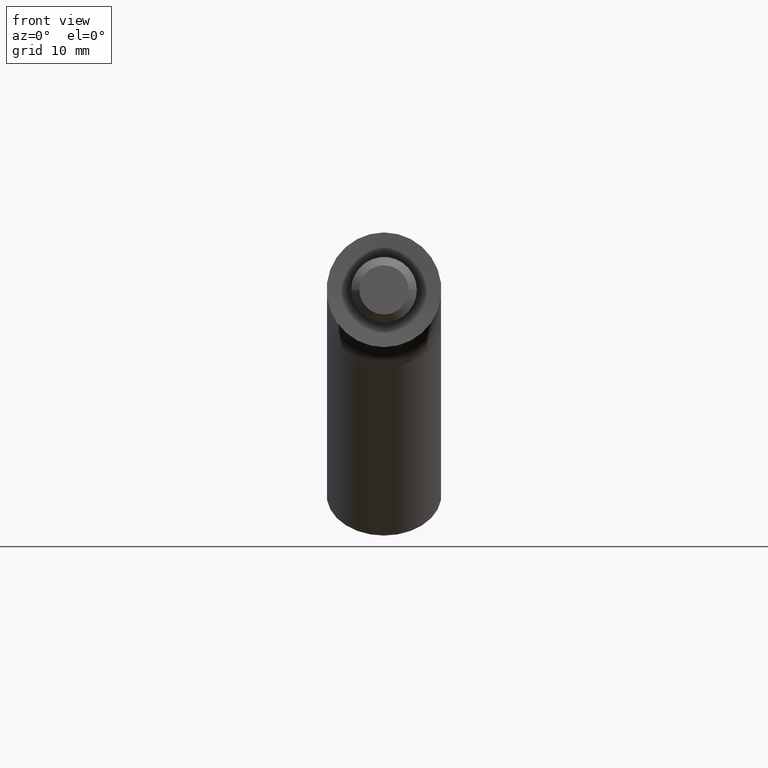
[diagram: clean part render]
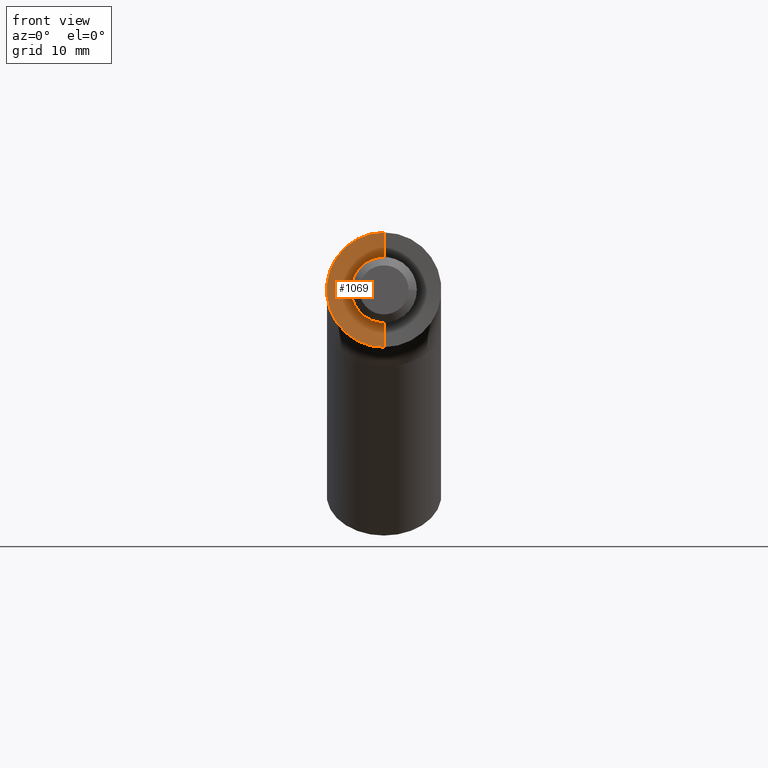
[diagram: same view with one face highlighted and labeled with its STEP entity id]
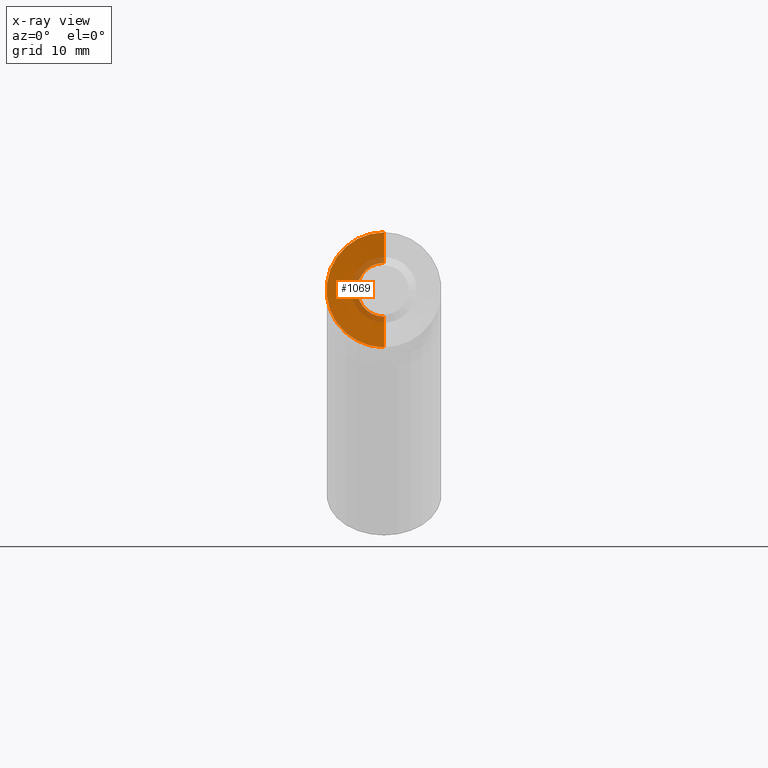
[diagram: x-ray of the same camera — body ghosted, the highlighted face saturated]
A machine part, front view. The second image highlights one B-rep face of the part: STEP entity #1069.
The next image is the same camera in x-ray: the body ghosted, the highlighted face saturated — about 14% of this face is hidden behind the body in this view.
In plain terms, the highlighted conical surface has half-angle 85 deg.
Its self-contained STEP definition (entity closure, byte-faithful):
#5 = CONICAL_SURFACE ( 'NONE', #11667, 7.000000000000000000, 1.483529864195187100 ) ;
#1046 = DIRECTION ( 'NONE',  ( 0.0000000000000000000, 0.0000000000000000000, -1.000000000000000000 ) ) ;
#1069 = ADVANCED_FACE ( 'NONE', ( #4405 ), #5, .F. ) ;
#1089 = ORIENTED_EDGE ( 'NONE', *, *, #5767, .T. ) ;
#1750 = VERTEX_POINT ( 'NONE', #13063 ) ;
#1770 = CARTESIAN_POINT ( 'NONE',  ( 0.0000000000000000000, 0.3261762033592852100, 0.0000000000000000000 ) ) ;
#2207 = EDGE_CURVE ( 'NONE', #9186, #1750, #2764, .T. ) ;
#2219 = DIRECTION ( 'NONE',  ( 0.0000000000000000000, -0.08715574274765128200, -0.9961946980917461000 ) ) ;
#2556 = CARTESIAN_POINT ( 'NONE',  ( 0.0000000000000000000, 0.0000000000000000000, 0.0000000000000000000 ) ) ;
#2764 = CIRCLE ( 'NONE', #3863, 3.271788935686912800 ) ;
#2824 = ORIENTED_EDGE ( 'NONE', *, *, #6909, .F. ) ;
#2909 = EDGE_LOOP ( 'NONE', ( #9056, #1089, #10374, #2824 ) ) ;
#3094 = CARTESIAN_POINT ( 'NONE',  ( 0.0000000000000000000, 0.0000000000000000000, -7.000000000000000000 ) ) ;
#3863 = AXIS2_PLACEMENT_3D ( 'NONE', #1770, #11955, #5951 ) ;
#4405 = FACE_OUTER_BOUND ( 'NONE', #2909, .T. ) ;
#5291 = CIRCLE ( 'NONE', #11819, 7.000000000000000000 ) ;
#5358 = DIRECTION ( 'NONE',  ( -0.0000000000000000000, -1.000000000000000000, -0.0000000000000000000 ) ) ;
#5674 = DIRECTION ( 'NONE',  ( 0.0000000000000000000, 0.0000000000000000000, -1.000000000000000000 ) ) ;
#5767 = EDGE_CURVE ( 'NONE', #1750, #13227, #8176, .T. ) ;
#5951 = DIRECTION ( 'NONE',  ( 0.0000000000000000000, 0.0000000000000000000, -1.000000000000000000 ) ) ;
#6797 = CARTESIAN_POINT ( 'NONE',  ( 0.0000000000000000000, 0.0000000000000000000, -7.000000000000000000 ) ) ;
#6909 = EDGE_CURVE ( 'NONE', #9186, #10663, #9742, .T. ) ;
#8176 = LINE ( 'NONE', #11235, #8662 ) ;
#8662 = VECTOR ( 'NONE', #11094, 1000.000000000000000 ) ;
#8853 = DIRECTION ( 'NONE',  ( -0.0000000000000000000, -1.000000000000000000, -0.0000000000000000000 ) ) ;
#9056 = ORIENTED_EDGE ( 'NONE', *, *, #2207, .T. ) ;
#9186 = VERTEX_POINT ( 'NONE', #13058 ) ;
#9742 = LINE ( 'NONE', #3094, #12006 ) ;
#10374 = ORIENTED_EDGE ( 'NONE', *, *, #11493, .T. ) ;
#10663 = VERTEX_POINT ( 'NONE', #6797 ) ;
#11094 = DIRECTION ( 'NONE',  ( 1.219986648345620700E-016, -0.08715574274765128200, 0.9961946980917461000 ) ) ;
#11235 = CARTESIAN_POINT ( 'NONE',  ( 8.572527594031473200E-016, 0.0000000000000000000, 7.000000000000000000 ) ) ;
#11453 = CARTESIAN_POINT ( 'NONE',  ( 8.572527594031473200E-016, 0.0000000000000000000, 7.000000000000000000 ) ) ;
#11493 = EDGE_CURVE ( 'NONE', #13227, #10663, #5291, .T. ) ;
#11602 = CARTESIAN_POINT ( 'NONE',  ( 0.0000000000000000000, 0.0000000000000000000, 0.0000000000000000000 ) ) ;
#11667 = AXIS2_PLACEMENT_3D ( 'NONE', #2556, #8853, #5674 ) ;
#11819 = AXIS2_PLACEMENT_3D ( 'NONE', #11602, #5358, #1046 ) ;
#11955 = DIRECTION ( 'NONE',  ( 0.0000000000000000000, 1.000000000000000000, 0.0000000000000000000 ) ) ;
#12006 = VECTOR ( 'NONE', #2219, 1000.000000000000000 ) ;
#13058 = CARTESIAN_POINT ( 'NONE',  ( 0.0000000000000000000, 0.3261762033592852100, -3.271788935686912800 ) ) ;
#13063 = CARTESIAN_POINT ( 'NONE',  ( 6.289656720803087700E-016, 0.3261762033592852100, 3.271788935686912800 ) ) ;
#13227 = VERTEX_POINT ( 'NONE', #11453 ) ;